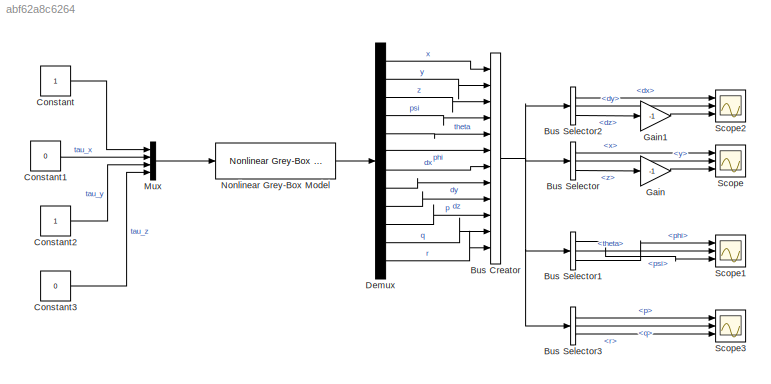
MODEL slx_abf62a8c6264
KIND model
CONFIG AbsTol = auto
CONFIG EnableMultiTasking = on
CONFIG FixedStep = auto
CONFIG MaxStep = auto
CONFIG MinStep = auto
CONFIG RelTol = 1e-3
CONFIG SampleTimeConstraint = Unconstrained
CONFIG Solver = ode45
CONFIG SolverName = ode45
CONFIG StartTime = 0.0
CONFIG StopTime = 1
BLOCK [BusCreator] Bus Creator
  DisplayOption = bar
  InheritFromInputs = on
  Inputs = 12
  Ports = [12, 1]
BLOCK [BusSelector] Bus Selector
  OutputAsBus = off
  OutputSignals = x,y,z
  Ports = [1, 3]
BLOCK [BusSelector] Bus Selector1
  OutputAsBus = off
  OutputSignals = psi,theta,phi
  Ports = [1, 3]
BLOCK [BusSelector] Bus Selector2
  OutputAsBus = off
  OutputSignals = dx,dy,dz
  Ports = [1, 3]
BLOCK [BusSelector] Bus Selector3
  OutputAsBus = off
  OutputSignals = p,q,r
  Ports = [1, 3]
BLOCK [Constant] Constant
BLOCK [Constant] Constant1
  Value = 0
BLOCK [Constant] Constant2
BLOCK [Constant] Constant3
  Value = 0
BLOCK [Demux] Demux
  DisplayOption = bar
  Outputs = 12
  Ports = [1, 12]
BLOCK [Gain] Gain
  Gain = -1
  OutDataTypeStr = Inherit: Inherit via internal rule
  ParamDataTypeStr = Inherit: Inherit via internal rule
  SaturateOnIntegerOverflow = off
BLOCK [Gain] Gain1
  Gain = -1
  OutDataTypeStr = Inherit: Inherit via internal rule
  ParamDataTypeStr = Inherit: Inherit via internal rule
  SaturateOnIntegerOverflow = off
BLOCK [Mux] Mux
  DisplayOption = bar
  Ports = [4, 1]
BLOCK [Reference] Nonlinear Grey-Box Model  REF=slident/Models/Nonlinear Grey-Box Model  (lib defined in mdl_f7d4911ca73a)
  Ports = [1, 1]
  SourceBlock = slident/Models/Nonlinear Grey-Box Model
  SourceProductBaseCode = ID
  SourceProductName = System Identification Toolbox
  SourceType = Nonlinear Grey-Box Model
BLOCK [Scope] Scope
  Floating = off
  NumInputPorts = 3
  Ports = [3]
  ScopeSpecificationString = Simulink.scopes.TimeScopeBlockCfg('CurrentConfiguration', extmgr.ConfigurationSet(extmgr.Configuration('Core','General UI',true),extmgr.Configuration('Core','Source UI',true),extmgr.Configuration('Sources','WiredSimulink',true,'DataLoggingLimitDataPoints',true,'DataLoggingDecimation','1','DataLoggingDecimateData',true,'DataLoggingSaveFormat','Array'),extmgr.Configuration('Visuals','Time Domain',tr...<+2912ch>
BLOCK [Scope] Scope1
  Floating = off
  NumInputPorts = 3
  Ports = [3]
  ScopeSpecificationString = Simulink.scopes.TimeScopeBlockCfg('CurrentConfiguration', extmgr.ConfigurationSet(extmgr.Configuration('Core','General UI',true),extmgr.Configuration('Core','Source UI',true),extmgr.Configuration('Sources','WiredSimulink',true,'DataLoggingLimitDataPoints',true,'DataLoggingDecimation','1','DataLoggingDecimateData',true,'DataLoggingSaveFormat','Array','DataLoggingVariableName','ScopeData1'),extmgr.C...<+2955ch>
BLOCK [Scope] Scope2
  Floating = off
  NumInputPorts = 3
  Ports = [3]
  ScopeSpecificationString = Simulink.scopes.TimeScopeBlockCfg('CurrentConfiguration', extmgr.ConfigurationSet(extmgr.Configuration('Core','General UI',true),extmgr.Configuration('Core','Source UI',true),extmgr.Configuration('Sources','WiredSimulink',true,'DataLoggingLimitDataPoints',true,'DataLoggingDecimation','1','DataLoggingDecimateData',true,'DataLoggingSaveFormat','Array','DataLoggingVariableName','ScopeData1'),extmgr.C...<+2945ch>
BLOCK [Scope] Scope3
  Floating = off
  NumInputPorts = 3
  Ports = [3]
  ScopeSpecificationString = Simulink.scopes.TimeScopeBlockCfg('CurrentConfiguration', extmgr.ConfigurationSet(extmgr.Configuration('Core','General UI',true),extmgr.Configuration('Core','Source UI',true),extmgr.Configuration('Sources','WiredSimulink',true,'DataLoggingLimitDataPoints',true,'DataLoggingDecimation','1','DataLoggingDecimateData',true,'DataLoggingSaveFormat','Array','DataLoggingVariableName','ScopeData2'),extmgr.C...<+2951ch>
NET Bus Creator:1 -> Bus Selector1:1, Bus Selector2:1, Bus Selector3:1, Bus Selector:1
LINE Bus Selector1:1 -> Scope1:3
LINE Bus Selector1:2 -> Scope1:2
LINE Bus Selector1:3 -> Scope1:1
LINE Bus Selector2:1 -> Scope2:1
LINE Bus Selector2:2 -> Scope2:2
LINE Bus Selector2:3 -> Gain1:1
LINE Bus Selector3:1 -> Scope3:1
LINE Bus Selector3:2 -> Scope3:2
LINE Bus Selector3:3 -> Scope3:3
LINE Bus Selector:1 -> Scope:1
LINE Bus Selector:2 -> Scope:2
LINE Bus Selector:3 -> Gain:1
LINE Constant1:1 -> Mux:2
LINE Constant2:1 -> Mux:3
LINE Constant3:1 -> Mux:4
LINE Constant:1 -> Mux:1
LINE Demux:1 -> Bus Creator:1
LINE Demux:10 -> Bus Creator:10
LINE Demux:11 -> Bus Creator:11
LINE Demux:12 -> Bus Creator:12
LINE Demux:2 -> Bus Creator:2
LINE Demux:3 -> Bus Creator:3
LINE Demux:4 -> Bus Creator:4
LINE Demux:5 -> Bus Creator:5
LINE Demux:6 -> Bus Creator:6
LINE Demux:7 -> Bus Creator:7
LINE Demux:8 -> Bus Creator:8
LINE Demux:9 -> Bus Creator:9
LINE Gain1:1 -> Scope2:3
LINE Gain:1 -> Scope:3
LINE Mux:1 -> Nonlinear Grey-Box Model:1
LINE Nonlinear Grey-Box Model:1 -> Demux:1
note: NET lines group one-source signal fan-out (src -> all destinations, sorted); 1:1 wires keep LINE
